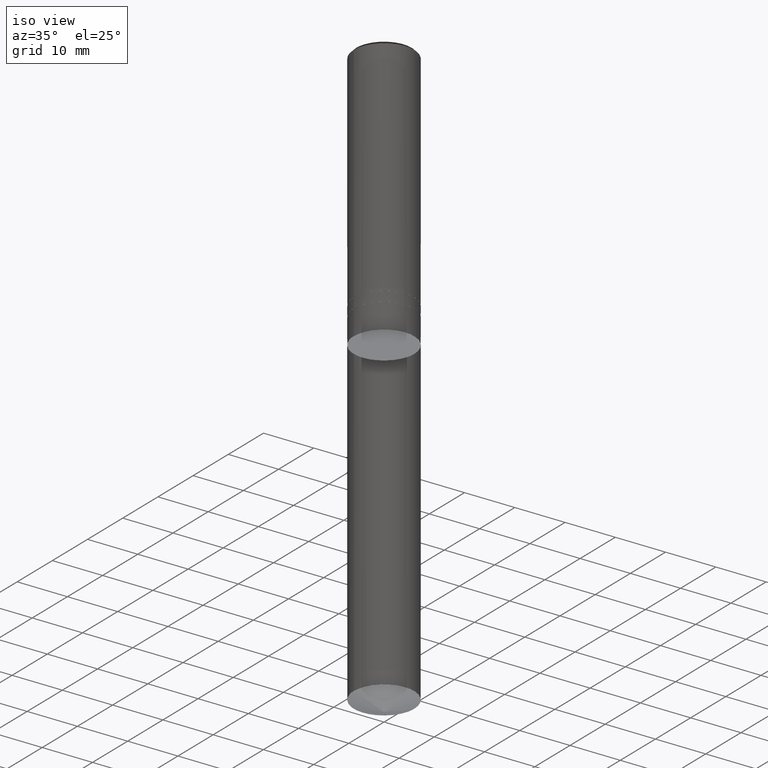
[diagram: clean part render]
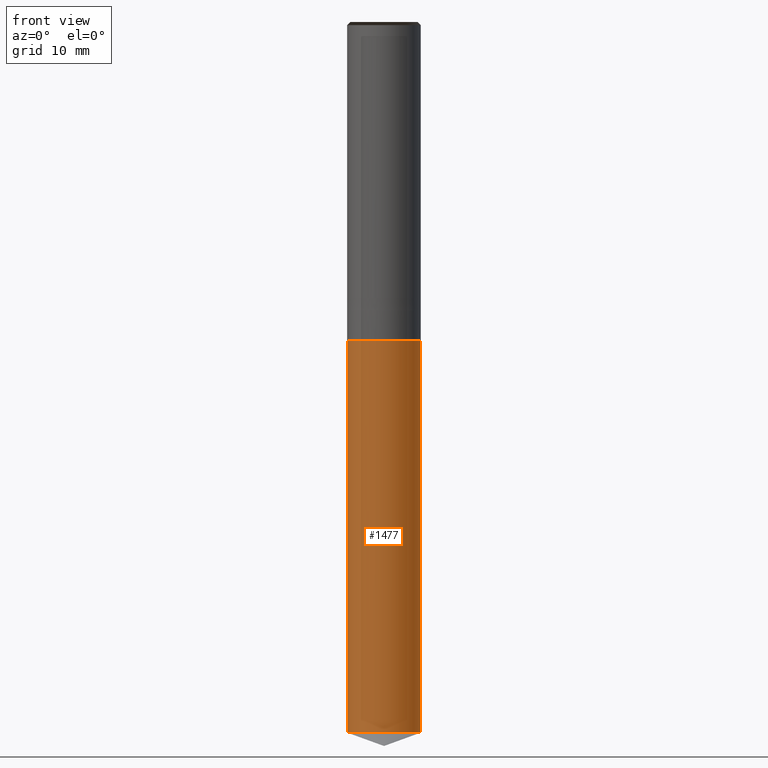
[diagram: tour spotlight — one face highlighted and labeled with its STEP entity id]
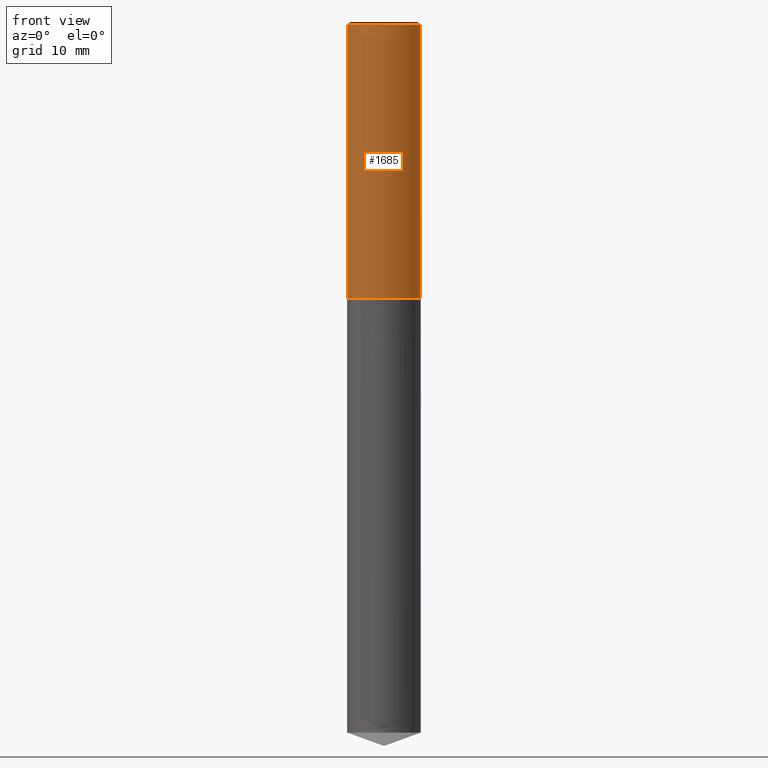
[diagram: tour spotlight — one face highlighted and labeled with its STEP entity id]
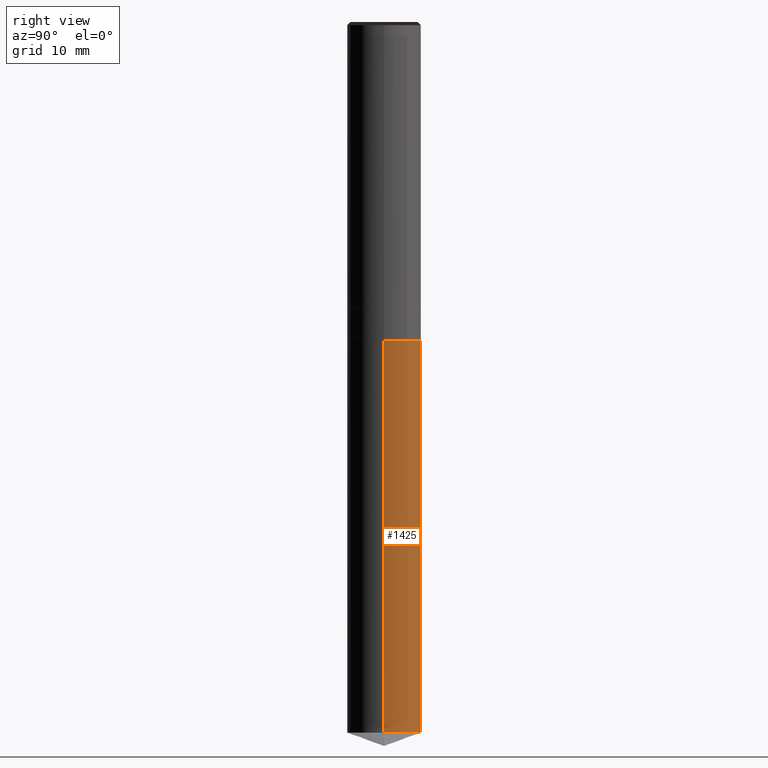
[diagram: tour spotlight — one face highlighted and labeled with its STEP entity id]
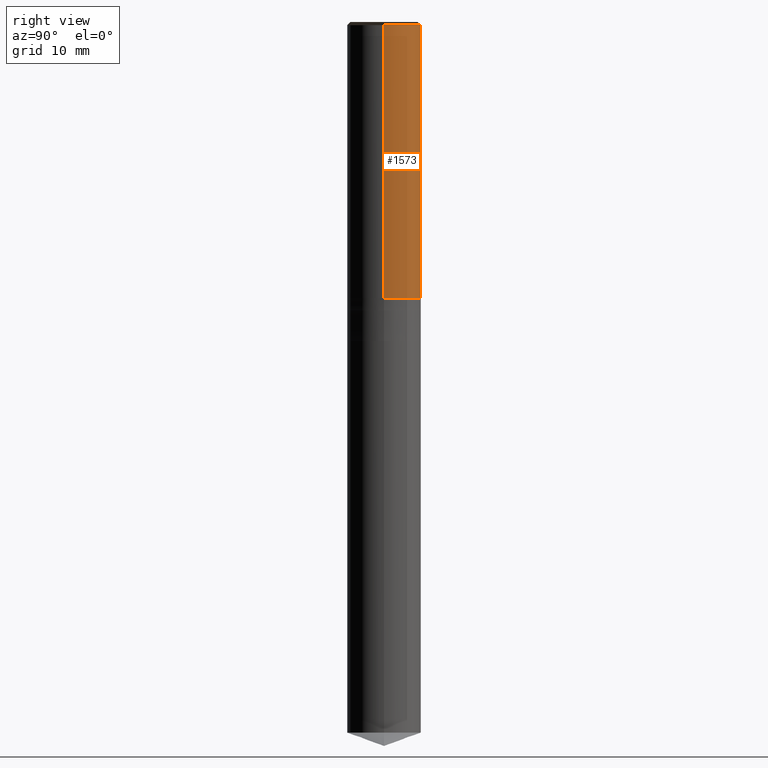
[diagram: tour spotlight — one face highlighted and labeled with its STEP entity id]
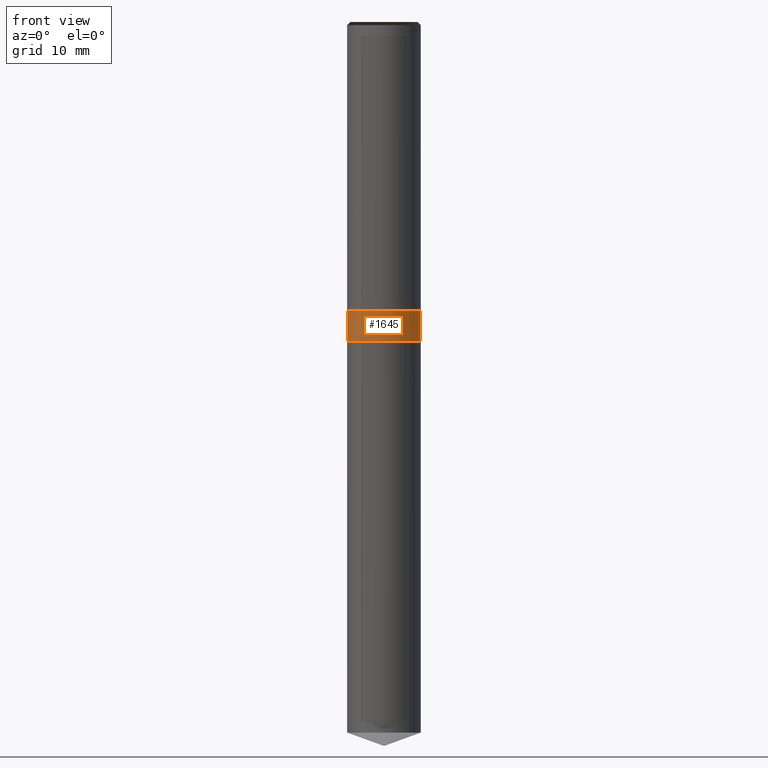
[diagram: tour spotlight — one face highlighted and labeled with its STEP entity id]
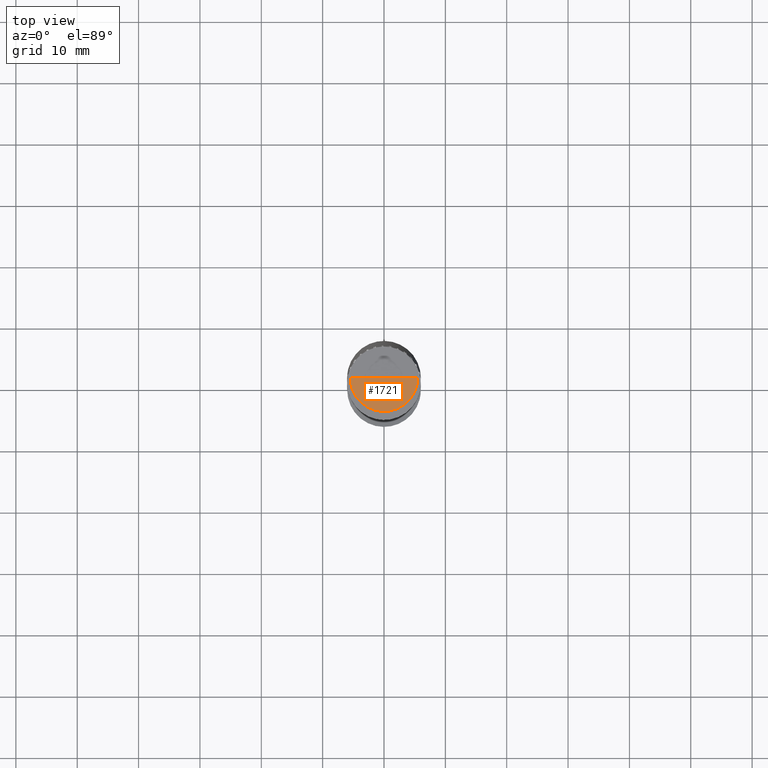
[diagram: tour spotlight — one face highlighted and labeled with its STEP entity id]
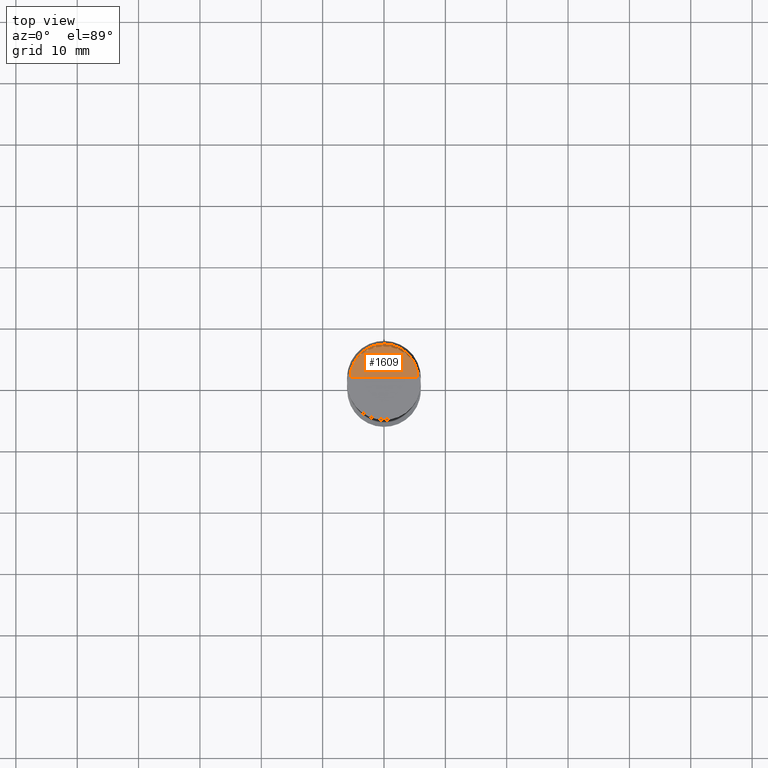
[diagram: tour spotlight — one face highlighted and labeled with its STEP entity id]
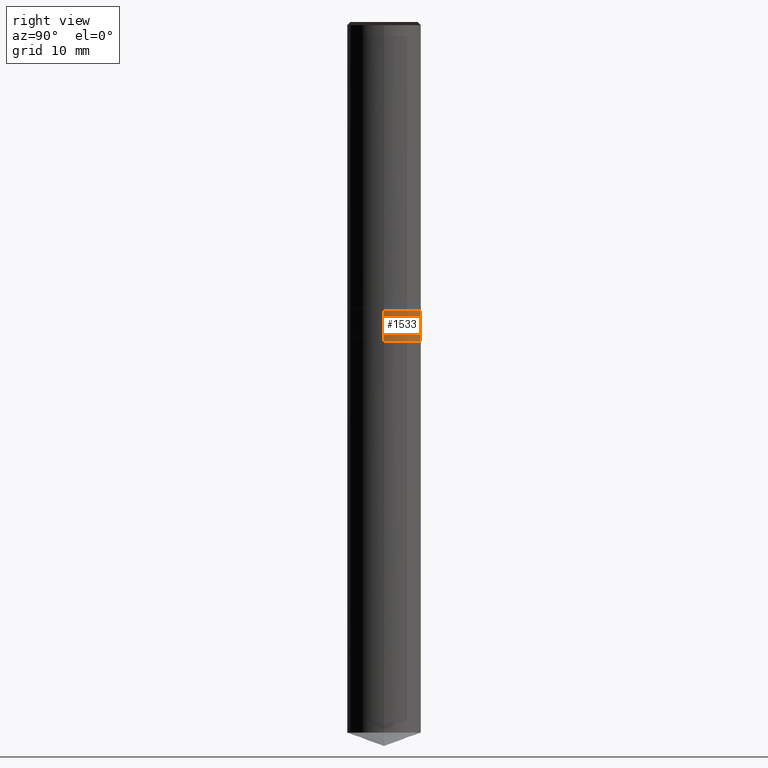
[diagram: tour spotlight — one face highlighted and labeled with its STEP entity id]
A machine part: a face-by-face anatomy tour. The part has 18 B-rep faces; the first image is the clean iso view, then the 8 largest visible faces are spotlighted one at a time (largest first), each with its STEP entity span.

Face 1 — front view, entity #1477. In plain terms, the highlighted face is a freeform B-spline surface patch.
Definition (entity closure, byte-faithful):
#1335=CARTESIAN_POINT('',(6.0,0.0,-70.816178594403));
#1339=CARTESIAN_POINT('',(-6.0,0.0,-70.816178594403));
#1340=CARTESIAN_POINT('',(6.0,0.0,-7.0));
#1344=CARTESIAN_POINT('',(-6.0,0.0,-7.0));
#1346=CARTESIAN_POINT('',(-6.0,-6.0,-70.816178594403));
#1347=CARTESIAN_POINT('',(0.0,-6.0,-70.816178594403));
#1348=CARTESIAN_POINT('',(6.0,-6.0,-70.816178594403));
#1349=CARTESIAN_POINT('',(-6.0,-6.0,-7.0));
#1350=CARTESIAN_POINT('',(0.0,-6.0,-7.0));
#1351=CARTESIAN_POINT('',(6.0,-6.0,-7.0));
#1458=(
BOUNDED_SURFACE()
B_SPLINE_SURFACE(1,2,(
(#1339,#1346,#1347,#1348,#1335),
(#1344,#1349,#1350,#1351,#1340)
), .UNSPECIFIED.,.F.,.F.,.F.)
B_SPLINE_SURFACE_WITH_KNOTS((2,2),(3,2,3),(
0.0,1.0),(
0.0,0.5,1.0), .UNSPECIFIED.)
GEOMETRIC_REPRESENTATION_ITEM()
RATIONAL_B_SPLINE_SURFACE(((1.0,0.707106781187,1.0,0.707106781187,1.0),
(1.0,0.707106781187,1.0,0.707106781187,1.0)
))
REPRESENTATION_ITEM('')
SURFACE()
);
#1459=(
BOUNDED_CURVE()
B_SPLINE_CURVE(2,(#1335,#1348,#1347,#1346,#1339),.UNSPECIFIED.,.F.,.F.)
B_SPLINE_CURVE_WITH_KNOTS((3,2,3),
(0.0,0.5,1.0),.UNSPECIFIED.)
CURVE()
GEOMETRIC_REPRESENTATION_ITEM()
RATIONAL_B_SPLINE_CURVE((1.0,0.707106781187,1.0,0.707106781187,1.0))
REPRESENTATION_ITEM('')
);
#1460=(
BOUNDED_CURVE()
B_SPLINE_CURVE(1,(#1339,#1344),.UNSPECIFIED.,.F.,.F.)
B_SPLINE_CURVE_WITH_KNOTS((2,2),
(0.0,1.0),.UNSPECIFIED.)
CURVE()
GEOMETRIC_REPRESENTATION_ITEM()
RATIONAL_B_SPLINE_CURVE((1.0,1.0))
REPRESENTATION_ITEM('')
);
#1461=(
BOUNDED_CURVE()
B_SPLINE_CURVE(2,(#1344,#1349,#1350,#1351,#1340),.UNSPECIFIED.,.F.,.F.)
B_SPLINE_CURVE_WITH_KNOTS((3,2,3),
(0.0,0.5,1.0),.UNSPECIFIED.)
CURVE()
GEOMETRIC_REPRESENTATION_ITEM()
RATIONAL_B_SPLINE_CURVE((1.0,0.707106781187,1.0,0.707106781187,1.0))
REPRESENTATION_ITEM('')
);
#1462=(
BOUNDED_CURVE()
B_SPLINE_CURVE(1,(#1340,#1335),.UNSPECIFIED.,.F.,.F.)
B_SPLINE_CURVE_WITH_KNOTS((2,2),
(0.0,1.0),.UNSPECIFIED.)
CURVE()
GEOMETRIC_REPRESENTATION_ITEM()
RATIONAL_B_SPLINE_CURVE((1.0,1.0))
REPRESENTATION_ITEM('')
);
#1463=VERTEX_POINT('',#1335);
#1464=VERTEX_POINT('',#1339);
#1465=VERTEX_POINT('',#1340);
#1466=VERTEX_POINT('',#1344);
#1467=EDGE_CURVE('',#1463,#1464,#1459,.T.);
#1468=EDGE_CURVE('',#1464,#1466,#1460,.T.);
#1469=EDGE_CURVE('',#1466,#1465,#1461,.T.);
#1470=EDGE_CURVE('',#1465,#1463,#1462,.T.);
#1471=ORIENTED_EDGE('',*,*,#1467,.T.);
#1472=ORIENTED_EDGE('',*,*,#1468,.T.);
#1473=ORIENTED_EDGE('',*,*,#1469,.T.);
#1474=ORIENTED_EDGE('',*,*,#1470,.T.);
#1475=EDGE_LOOP('',(#1471,#1472,#1473,#1474));
#1476=FACE_OUTER_BOUND('',#1475,.T.);
#1477=ADVANCED_FACE('',(#1476),#1458,.T.);

Face 2 — front view, entity #1685. In plain terms, the highlighted face is a freeform B-spline surface patch.
Definition (entity closure, byte-faithful):
#1357=CARTESIAN_POINT('',(6.0,0.0,0.0));
#1361=CARTESIAN_POINT('',(-6.0,0.0,0.0));
#1362=CARTESIAN_POINT('',(6.0,0.0,44.5));
#1366=CARTESIAN_POINT('',(-6.0,0.0,44.5));
#1376=CARTESIAN_POINT('',(-6.0,-6.0,0.0));
#1377=CARTESIAN_POINT('',(0.0,-6.0,0.0));
#1378=CARTESIAN_POINT('',(6.0,-6.0,0.0));
#1379=CARTESIAN_POINT('',(-6.0,-6.0,44.5));
#1380=CARTESIAN_POINT('',(0.0,-6.0,44.5));
#1381=CARTESIAN_POINT('',(6.0,-6.0,44.5));
#1666=(
BOUNDED_SURFACE()
B_SPLINE_SURFACE(1,2,(
(#1361,#1376,#1377,#1378,#1357),
(#1366,#1379,#1380,#1381,#1362)
), .UNSPECIFIED.,.F.,.F.,.F.)
B_SPLINE_SURFACE_WITH_KNOTS((2,2),(3,2,3),(
0.0,1.0),(
0.0,0.5,1.0), .UNSPECIFIED.)
GEOMETRIC_REPRESENTATION_ITEM()
RATIONAL_B_SPLINE_SURFACE(((1.0,0.707106781187,1.0,0.707106781187,1.0),
(1.0,0.707106781187,1.0,0.707106781187,1.0)
))
REPRESENTATION_ITEM('')
SURFACE()
);
#1667=(
BOUNDED_CURVE()
B_SPLINE_CURVE(2,(#1357,#1378,#1377,#1376,#1361),.UNSPECIFIED.,.F.,.F.)
B_SPLINE_CURVE_WITH_KNOTS((3,2,3),
(0.0,0.5,1.0),.UNSPECIFIED.)
CURVE()
GEOMETRIC_REPRESENTATION_ITEM()
RATIONAL_B_SPLINE_CURVE((1.0,0.707106781187,1.0,0.707106781187,1.0))
REPRESENTATION_ITEM('')
);
#1668=(
BOUNDED_CURVE()
B_SPLINE_CURVE(1,(#1361,#1366),.UNSPECIFIED.,.F.,.F.)
B_SPLINE_CURVE_WITH_KNOTS((2,2),
(0.0,1.0),.UNSPECIFIED.)
CURVE()
GEOMETRIC_REPRESENTATION_ITEM()
RATIONAL_B_SPLINE_CURVE((1.0,1.0))
REPRESENTATION_ITEM('')
);
#1669=(
BOUNDED_CURVE()
B_SPLINE_CURVE(2,(#1366,#1379,#1380,#1381,#1362),.UNSPECIFIED.,.F.,.F.)
B_SPLINE_CURVE_WITH_KNOTS((3,2,3),
(0.0,0.5,1.0),.UNSPECIFIED.)
CURVE()
GEOMETRIC_REPRESENTATION_ITEM()
RATIONAL_B_SPLINE_CURVE((1.0,0.707106781187,1.0,0.707106781187,1.0))
REPRESENTATION_ITEM('')
);
#1670=(
BOUNDED_CURVE()
B_SPLINE_CURVE(1,(#1362,#1357),.UNSPECIFIED.,.F.,.F.)
B_SPLINE_CURVE_WITH_KNOTS((2,2),
(0.0,1.0),.UNSPECIFIED.)
CURVE()
GEOMETRIC_REPRESENTATION_ITEM()
RATIONAL_B_SPLINE_CURVE((1.0,1.0))
REPRESENTATION_ITEM('')
);
#1671=VERTEX_POINT('',#1357);
#1672=VERTEX_POINT('',#1361);
#1673=VERTEX_POINT('',#1362);
#1674=VERTEX_POINT('',#1366);
#1675=EDGE_CURVE('',#1671,#1672,#1667,.T.);
#1676=EDGE_CURVE('',#1672,#1674,#1668,.T.);
#1677=EDGE_CURVE('',#1674,#1673,#1669,.T.);
#1678=EDGE_CURVE('',#1673,#1671,#1670,.T.);
#1679=ORIENTED_EDGE('',*,*,#1675,.T.);
#1680=ORIENTED_EDGE('',*,*,#1676,.T.);
#1681=ORIENTED_EDGE('',*,*,#1677,.T.);
#1682=ORIENTED_EDGE('',*,*,#1678,.T.);
#1683=EDGE_LOOP('',(#1679,#1680,#1681,#1682));
#1684=FACE_OUTER_BOUND('',#1683,.T.);
#1685=ADVANCED_FACE('',(#1684),#1666,.T.);

Face 3 — right view, entity #1425. In plain terms, the highlighted face is a freeform B-spline surface patch.
Definition (entity closure, byte-faithful):
#1335=CARTESIAN_POINT('',(6.0,0.0,-70.816178594403));
#1336=CARTESIAN_POINT('',(6.0,6.0,-70.816178594403));
#1337=CARTESIAN_POINT('',(0.0,6.0,-70.816178594403));
#1338=CARTESIAN_POINT('',(-6.0,6.0,-70.816178594403));
#1339=CARTESIAN_POINT('',(-6.0,0.0,-70.816178594403));
#1340=CARTESIAN_POINT('',(6.0,0.0,-7.0));
#1341=CARTESIAN_POINT('',(6.0,6.0,-7.0));
#1342=CARTESIAN_POINT('',(0.0,6.0,-7.0));
#1343=CARTESIAN_POINT('',(-6.0,6.0,-7.0));
#1344=CARTESIAN_POINT('',(-6.0,0.0,-7.0));
#1406=(
BOUNDED_SURFACE()
B_SPLINE_SURFACE(1,2,(
(#1335,#1336,#1337,#1338,#1339),
(#1340,#1341,#1342,#1343,#1344)
), .UNSPECIFIED.,.F.,.F.,.F.)
B_SPLINE_SURFACE_WITH_KNOTS((2,2),(3,2,3),(
0.0,1.0),(
0.0,0.5,1.0), .UNSPECIFIED.)
GEOMETRIC_REPRESENTATION_ITEM()
RATIONAL_B_SPLINE_SURFACE(((1.0,0.707106781187,1.0,0.707106781187,1.0),
(1.0,0.707106781187,1.0,0.707106781187,1.0)
))
REPRESENTATION_ITEM('')
SURFACE()
);
#1407=(
BOUNDED_CURVE()
B_SPLINE_CURVE(2,(#1339,#1338,#1337,#1336,#1335),.UNSPECIFIED.,.F.,.F.)
B_SPLINE_CURVE_WITH_KNOTS((3,2,3),
(0.0,0.5,1.0),.UNSPECIFIED.)
CURVE()
GEOMETRIC_REPRESENTATION_ITEM()
RATIONAL_B_SPLINE_CURVE((1.0,0.707106781187,1.0,0.707106781187,1.0))
REPRESENTATION_ITEM('')
);
#1408=(
BOUNDED_CURVE()
B_SPLINE_CURVE(1,(#1335,#1340),.UNSPECIFIED.,.F.,.F.)
B_SPLINE_CURVE_WITH_KNOTS((2,2),
(0.0,1.0),.UNSPECIFIED.)
CURVE()
GEOMETRIC_REPRESENTATION_ITEM()
RATIONAL_B_SPLINE_CURVE((1.0,1.0))
REPRESENTATION_ITEM('')
);
#1409=(
BOUNDED_CURVE()
B_SPLINE_CURVE(2,(#1340,#1341,#1342,#1343,#1344),.UNSPECIFIED.,.F.,.F.)
B_SPLINE_CURVE_WITH_KNOTS((3,2,3),
(0.0,0.5,1.0),.UNSPECIFIED.)
CURVE()
GEOMETRIC_REPRESENTATION_ITEM()
RATIONAL_B_SPLINE_CURVE((1.0,0.707106781187,1.0,0.707106781187,1.0))
REPRESENTATION_ITEM('')
);
#1410=(
BOUNDED_CURVE()
B_SPLINE_CURVE(1,(#1344,#1339),.UNSPECIFIED.,.F.,.F.)
B_SPLINE_CURVE_WITH_KNOTS((2,2),
(0.0,1.0),.UNSPECIFIED.)
CURVE()
GEOMETRIC_REPRESENTATION_ITEM()
RATIONAL_B_SPLINE_CURVE((1.0,1.0))
REPRESENTATION_ITEM('')
);
#1411=VERTEX_POINT('',#1335);
#1412=VERTEX_POINT('',#1339);
#1413=VERTEX_POINT('',#1340);
#1414=VERTEX_POINT('',#1344);
#1415=EDGE_CURVE('',#1412,#1411,#1407,.T.);
#1416=EDGE_CURVE('',#1411,#1413,#1408,.T.);
#1417=EDGE_CURVE('',#1413,#1414,#1409,.T.);
#1418=EDGE_CURVE('',#1414,#1412,#1410,.T.);
#1419=ORIENTED_EDGE('',*,*,#1415,.T.);
#1420=ORIENTED_EDGE('',*,*,#1416,.T.);
#1421=ORIENTED_EDGE('',*,*,#1417,.T.);
#1422=ORIENTED_EDGE('',*,*,#1418,.T.);
#1423=EDGE_LOOP('',(#1419,#1420,#1421,#1422));
#1424=FACE_OUTER_BOUND('',#1423,.T.);
#1425=ADVANCED_FACE('',(#1424),#1406,.T.);

Face 4 — right view, entity #1573. In plain terms, the highlighted face is a freeform B-spline surface patch.
Definition (entity closure, byte-faithful):
#1357=CARTESIAN_POINT('',(6.0,0.0,0.0));
#1358=CARTESIAN_POINT('',(6.0,6.0,0.0));
#1359=CARTESIAN_POINT('',(0.0,6.0,0.0));
#1360=CARTESIAN_POINT('',(-6.0,6.0,0.0));
#1361=CARTESIAN_POINT('',(-6.0,0.0,0.0));
#1362=CARTESIAN_POINT('',(6.0,0.0,44.5));
#1363=CARTESIAN_POINT('',(6.0,6.0,44.5));
#1364=CARTESIAN_POINT('',(0.0,6.0,44.5));
#1365=CARTESIAN_POINT('',(-6.0,6.0,44.5));
#1366=CARTESIAN_POINT('',(-6.0,0.0,44.5));
#1554=(
BOUNDED_SURFACE()
B_SPLINE_SURFACE(1,2,(
(#1357,#1358,#1359,#1360,#1361),
(#1362,#1363,#1364,#1365,#1366)
), .UNSPECIFIED.,.F.,.F.,.F.)
B_SPLINE_SURFACE_WITH_KNOTS((2,2),(3,2,3),(
0.0,1.0),(
0.0,0.5,1.0), .UNSPECIFIED.)
GEOMETRIC_REPRESENTATION_ITEM()
RATIONAL_B_SPLINE_SURFACE(((1.0,0.707106781187,1.0,0.707106781187,1.0),
(1.0,0.707106781187,1.0,0.707106781187,1.0)
))
REPRESENTATION_ITEM('')
SURFACE()
);
#1555=(
BOUNDED_CURVE()
B_SPLINE_CURVE(2,(#1361,#1360,#1359,#1358,#1357),.UNSPECIFIED.,.F.,.F.)
B_SPLINE_CURVE_WITH_KNOTS((3,2,3),
(0.0,0.5,1.0),.UNSPECIFIED.)
CURVE()
GEOMETRIC_REPRESENTATION_ITEM()
RATIONAL_B_SPLINE_CURVE((1.0,0.707106781187,1.0,0.707106781187,1.0))
REPRESENTATION_ITEM('')
);
#1556=(
BOUNDED_CURVE()
B_SPLINE_CURVE(1,(#1357,#1362),.UNSPECIFIED.,.F.,.F.)
B_SPLINE_CURVE_WITH_KNOTS((2,2),
(0.0,1.0),.UNSPECIFIED.)
CURVE()
GEOMETRIC_REPRESENTATION_ITEM()
RATIONAL_B_SPLINE_CURVE((1.0,1.0))
REPRESENTATION_ITEM('')
);
#1557=(
BOUNDED_CURVE()
B_SPLINE_CURVE(2,(#1362,#1363,#1364,#1365,#1366),.UNSPECIFIED.,.F.,.F.)
B_SPLINE_CURVE_WITH_KNOTS((3,2,3),
(0.0,0.5,1.0),.UNSPECIFIED.)
CURVE()
GEOMETRIC_REPRESENTATION_ITEM()
RATIONAL_B_SPLINE_CURVE((1.0,0.707106781187,1.0,0.707106781187,1.0))
REPRESENTATION_ITEM('')
);
#1558=(
BOUNDED_CURVE()
B_SPLINE_CURVE(1,(#1366,#1361),.UNSPECIFIED.,.F.,.F.)
B_SPLINE_CURVE_WITH_KNOTS((2,2),
(0.0,1.0),.UNSPECIFIED.)
CURVE()
GEOMETRIC_REPRESENTATION_ITEM()
RATIONAL_B_SPLINE_CURVE((1.0,1.0))
REPRESENTATION_ITEM('')
);
#1559=VERTEX_POINT('',#1357);
#1560=VERTEX_POINT('',#1361);
#1561=VERTEX_POINT('',#1362);
#1562=VERTEX_POINT('',#1366);
#1563=EDGE_CURVE('',#1560,#1559,#1555,.T.);
#1564=EDGE_CURVE('',#1559,#1561,#1556,.T.);
#1565=EDGE_CURVE('',#1561,#1562,#1557,.T.);
#1566=EDGE_CURVE('',#1562,#1560,#1558,.T.);
#1567=ORIENTED_EDGE('',*,*,#1563,.T.);
#1568=ORIENTED_EDGE('',*,*,#1564,.T.);
#1569=ORIENTED_EDGE('',*,*,#1565,.T.);
#1570=ORIENTED_EDGE('',*,*,#1566,.T.);
#1571=EDGE_LOOP('',(#1567,#1568,#1569,#1570));
#1572=FACE_OUTER_BOUND('',#1571,.T.);
#1573=ADVANCED_FACE('',(#1572),#1554,.T.);

Face 5 — front view, entity #1645. In plain terms, the highlighted face is a freeform B-spline surface patch.
Definition (entity closure, byte-faithful):
#1340=CARTESIAN_POINT('',(6.0,0.0,-7.0));
#1344=CARTESIAN_POINT('',(-6.0,0.0,-7.0));
#1349=CARTESIAN_POINT('',(-6.0,-6.0,-7.0));
#1350=CARTESIAN_POINT('',(0.0,-6.0,-7.0));
#1351=CARTESIAN_POINT('',(6.0,-6.0,-7.0));
#1352=CARTESIAN_POINT('',(6.0,0.0,-2.0));
#1356=CARTESIAN_POINT('',(-6.0,0.0,-2.0));
#1373=CARTESIAN_POINT('',(-6.0,-6.0,-2.0));
#1374=CARTESIAN_POINT('',(0.0,-6.0,-2.0));
#1375=CARTESIAN_POINT('',(6.0,-6.0,-2.0));
#1626=(
BOUNDED_SURFACE()
B_SPLINE_SURFACE(1,2,(
(#1344,#1349,#1350,#1351,#1340),
(#1356,#1373,#1374,#1375,#1352)
), .UNSPECIFIED.,.F.,.F.,.F.)
B_SPLINE_SURFACE_WITH_KNOTS((2,2),(3,2,3),(
0.0,1.0),(
0.0,0.5,1.0), .UNSPECIFIED.)
GEOMETRIC_REPRESENTATION_ITEM()
RATIONAL_B_SPLINE_SURFACE(((1.0,0.707106781187,1.0,0.707106781187,1.0),
(1.0,0.707106781187,1.0,0.707106781187,1.0)
))
REPRESENTATION_ITEM('')
SURFACE()
);
#1627=(
BOUNDED_CURVE()
B_SPLINE_CURVE(2,(#1340,#1351,#1350,#1349,#1344),.UNSPECIFIED.,.F.,.F.)
B_SPLINE_CURVE_WITH_KNOTS((3,2,3),
(0.0,0.5,1.0),.UNSPECIFIED.)
CURVE()
GEOMETRIC_REPRESENTATION_ITEM()
RATIONAL_B_SPLINE_CURVE((1.0,0.707106781187,1.0,0.707106781187,1.0))
REPRESENTATION_ITEM('')
);
#1628=(
BOUNDED_CURVE()
B_SPLINE_CURVE(1,(#1344,#1356),.UNSPECIFIED.,.F.,.F.)
B_SPLINE_CURVE_WITH_KNOTS((2,2),
(0.0,1.0),.UNSPECIFIED.)
CURVE()
GEOMETRIC_REPRESENTATION_ITEM()
RATIONAL_B_SPLINE_CURVE((1.0,1.0))
REPRESENTATION_ITEM('')
);
#1629=(
BOUNDED_CURVE()
B_SPLINE_CURVE(2,(#1356,#1373,#1374,#1375,#1352),.UNSPECIFIED.,.F.,.F.)
B_SPLINE_CURVE_WITH_KNOTS((3,2,3),
(0.0,0.5,1.0),.UNSPECIFIED.)
CURVE()
GEOMETRIC_REPRESENTATION_ITEM()
RATIONAL_B_SPLINE_CURVE((1.0,0.707106781187,1.0,0.707106781187,1.0))
REPRESENTATION_ITEM('')
);
#1630=(
BOUNDED_CURVE()
B_SPLINE_CURVE(1,(#1352,#1340),.UNSPECIFIED.,.F.,.F.)
B_SPLINE_CURVE_WITH_KNOTS((2,2),
(0.0,1.0),.UNSPECIFIED.)
CURVE()
GEOMETRIC_REPRESENTATION_ITEM()
RATIONAL_B_SPLINE_CURVE((1.0,1.0))
REPRESENTATION_ITEM('')
);
#1631=VERTEX_POINT('',#1340);
#1632=VERTEX_POINT('',#1344);
#1633=VERTEX_POINT('',#1352);
#1634=VERTEX_POINT('',#1356);
#1635=EDGE_CURVE('',#1631,#1632,#1627,.T.);
#1636=EDGE_CURVE('',#1632,#1634,#1628,.T.);
#1637=EDGE_CURVE('',#1634,#1633,#1629,.T.);
#1638=EDGE_CURVE('',#1633,#1631,#1630,.T.);
#1639=ORIENTED_EDGE('',*,*,#1635,.T.);
#1640=ORIENTED_EDGE('',*,*,#1636,.T.);
#1641=ORIENTED_EDGE('',*,*,#1637,.T.);
#1642=ORIENTED_EDGE('',*,*,#1638,.T.);
#1643=EDGE_LOOP('',(#1639,#1640,#1641,#1642));
#1644=FACE_OUTER_BOUND('',#1643,.T.);
#1645=ADVANCED_FACE('',(#1644),#1626,.T.);

Face 6 — top view, entity #1721. In plain terms, the highlighted face is a freeform B-spline surface patch.
Definition (entity closure, byte-faithful):
#1367=CARTESIAN_POINT('',(5.5,0.0,45.0));
#1371=CARTESIAN_POINT('',(-5.5,0.0,45.0));
#1372=CARTESIAN_POINT('',(0.0,0.0,45.0));
#1382=CARTESIAN_POINT('',(-5.5,-5.5,45.0));
#1383=CARTESIAN_POINT('',(0.0,-5.5,45.0));
#1384=CARTESIAN_POINT('',(5.5,-5.5,45.0));
#1706=(
BOUNDED_SURFACE()
B_SPLINE_SURFACE(1,2,(
(#1371,#1382,#1383,#1384,#1367),
(#1372,#1372,#1372,#1372,#1372)
), .UNSPECIFIED.,.F.,.F.,.F.)
B_SPLINE_SURFACE_WITH_KNOTS((2,2),(3,2,3),(
0.0,1.0),(
0.0,0.5,1.0), .UNSPECIFIED.)
GEOMETRIC_REPRESENTATION_ITEM()
RATIONAL_B_SPLINE_SURFACE(((1.0,0.707106781187,1.0,0.707106781187,1.0),
(1.0,0.707106781187,1.0,0.707106781187,1.0)
))
REPRESENTATION_ITEM('')
SURFACE()
);
#1707=(
BOUNDED_CURVE()
B_SPLINE_CURVE(2,(#1367,#1384,#1383,#1382,#1371),.UNSPECIFIED.,.F.,.F.)
B_SPLINE_CURVE_WITH_KNOTS((3,2,3),
(0.0,0.5,1.0),.UNSPECIFIED.)
CURVE()
GEOMETRIC_REPRESENTATION_ITEM()
RATIONAL_B_SPLINE_CURVE((1.0,0.707106781187,1.0,0.707106781187,1.0))
REPRESENTATION_ITEM('')
);
#1708=(
BOUNDED_CURVE()
B_SPLINE_CURVE(1,(#1371,#1372),.UNSPECIFIED.,.F.,.F.)
B_SPLINE_CURVE_WITH_KNOTS((2,2),
(0.0,1.0),.UNSPECIFIED.)
CURVE()
GEOMETRIC_REPRESENTATION_ITEM()
RATIONAL_B_SPLINE_CURVE((1.0,1.0))
REPRESENTATION_ITEM('')
);
#1709=(
BOUNDED_CURVE()
B_SPLINE_CURVE(1,(#1372,#1367),.UNSPECIFIED.,.F.,.F.)
B_SPLINE_CURVE_WITH_KNOTS((2,2),
(0.0,1.0),.UNSPECIFIED.)
CURVE()
GEOMETRIC_REPRESENTATION_ITEM()
RATIONAL_B_SPLINE_CURVE((1.0,1.0))
REPRESENTATION_ITEM('')
);
#1710=VERTEX_POINT('',#1367);
#1711=VERTEX_POINT('',#1371);
#1712=VERTEX_POINT('',#1372);
#1713=EDGE_CURVE('',#1710,#1711,#1707,.T.);
#1714=EDGE_CURVE('',#1711,#1712,#1708,.T.);
#1715=EDGE_CURVE('',#1712,#1710,#1709,.T.);
#1716=ORIENTED_EDGE('',*,*,#1713,.T.);
#1717=ORIENTED_EDGE('',*,*,#1714,.T.);
#1718=ORIENTED_EDGE('',*,*,#1715,.T.);
#1719=EDGE_LOOP('',(#1716,#1717,#1718));
#1720=FACE_OUTER_BOUND('',#1719,.T.);
#1721=ADVANCED_FACE('',(#1720),#1706,.T.);

Face 7 — top view, entity #1609. In plain terms, the highlighted face is a freeform B-spline surface patch.
Definition (entity closure, byte-faithful):
#1367=CARTESIAN_POINT('',(5.5,0.0,45.0));
#1368=CARTESIAN_POINT('',(5.5,5.5,45.0));
#1369=CARTESIAN_POINT('',(0.0,5.5,45.0));
#1370=CARTESIAN_POINT('',(-5.5,5.5,45.0));
#1371=CARTESIAN_POINT('',(-5.5,0.0,45.0));
#1372=CARTESIAN_POINT('',(0.0,0.0,45.0));
#1594=(
BOUNDED_SURFACE()
B_SPLINE_SURFACE(1,2,(
(#1367,#1368,#1369,#1370,#1371),
(#1372,#1372,#1372,#1372,#1372)
), .UNSPECIFIED.,.F.,.F.,.F.)
B_SPLINE_SURFACE_WITH_KNOTS((2,2),(3,2,3),(
0.0,1.0),(
0.0,0.5,1.0), .UNSPECIFIED.)
GEOMETRIC_REPRESENTATION_ITEM()
RATIONAL_B_SPLINE_SURFACE(((1.0,0.707106781187,1.0,0.707106781187,1.0),
(1.0,0.707106781187,1.0,0.707106781187,1.0)
))
REPRESENTATION_ITEM('')
SURFACE()
);
#1595=(
BOUNDED_CURVE()
B_SPLINE_CURVE(2,(#1371,#1370,#1369,#1368,#1367),.UNSPECIFIED.,.F.,.F.)
B_SPLINE_CURVE_WITH_KNOTS((3,2,3),
(0.0,0.5,1.0),.UNSPECIFIED.)
CURVE()
GEOMETRIC_REPRESENTATION_ITEM()
RATIONAL_B_SPLINE_CURVE((1.0,0.707106781187,1.0,0.707106781187,1.0))
REPRESENTATION_ITEM('')
);
#1596=(
BOUNDED_CURVE()
B_SPLINE_CURVE(1,(#1367,#1372),.UNSPECIFIED.,.F.,.F.)
B_SPLINE_CURVE_WITH_KNOTS((2,2),
(0.0,1.0),.UNSPECIFIED.)
CURVE()
GEOMETRIC_REPRESENTATION_ITEM()
RATIONAL_B_SPLINE_CURVE((1.0,1.0))
REPRESENTATION_ITEM('')
);
#1597=(
BOUNDED_CURVE()
B_SPLINE_CURVE(1,(#1372,#1371),.UNSPECIFIED.,.F.,.F.)
B_SPLINE_CURVE_WITH_KNOTS((2,2),
(0.0,1.0),.UNSPECIFIED.)
CURVE()
GEOMETRIC_REPRESENTATION_ITEM()
RATIONAL_B_SPLINE_CURVE((1.0,1.0))
REPRESENTATION_ITEM('')
);
#1598=VERTEX_POINT('',#1367);
#1599=VERTEX_POINT('',#1371);
#1600=VERTEX_POINT('',#1372);
#1601=EDGE_CURVE('',#1599,#1598,#1595,.T.);
#1602=EDGE_CURVE('',#1598,#1600,#1596,.T.);
#1603=EDGE_CURVE('',#1600,#1599,#1597,.T.);
#1604=ORIENTED_EDGE('',*,*,#1601,.T.);
#1605=ORIENTED_EDGE('',*,*,#1602,.T.);
#1606=ORIENTED_EDGE('',*,*,#1603,.T.);
#1607=EDGE_LOOP('',(#1604,#1605,#1606));
#1608=FACE_OUTER_BOUND('',#1607,.T.);
#1609=ADVANCED_FACE('',(#1608),#1594,.T.);

Face 8 — right view, entity #1533. In plain terms, the highlighted face is a freeform B-spline surface patch.
Definition (entity closure, byte-faithful):
#1340=CARTESIAN_POINT('',(6.0,0.0,-7.0));
#1341=CARTESIAN_POINT('',(6.0,6.0,-7.0));
#1342=CARTESIAN_POINT('',(0.0,6.0,-7.0));
#1343=CARTESIAN_POINT('',(-6.0,6.0,-7.0));
#1344=CARTESIAN_POINT('',(-6.0,0.0,-7.0));
#1352=CARTESIAN_POINT('',(6.0,0.0,-2.0));
#1353=CARTESIAN_POINT('',(6.0,6.0,-2.0));
#1354=CARTESIAN_POINT('',(0.0,6.0,-2.0));
#1355=CARTESIAN_POINT('',(-6.0,6.0,-2.0));
#1356=CARTESIAN_POINT('',(-6.0,0.0,-2.0));
#1514=(
BOUNDED_SURFACE()
B_SPLINE_SURFACE(1,2,(
(#1340,#1341,#1342,#1343,#1344),
(#1352,#1353,#1354,#1355,#1356)
), .UNSPECIFIED.,.F.,.F.,.F.)
B_SPLINE_SURFACE_WITH_KNOTS((2,2),(3,2,3),(
0.0,1.0),(
0.0,0.5,1.0), .UNSPECIFIED.)
GEOMETRIC_REPRESENTATION_ITEM()
RATIONAL_B_SPLINE_SURFACE(((1.0,0.707106781187,1.0,0.707106781187,1.0),
(1.0,0.707106781187,1.0,0.707106781187,1.0)
))
REPRESENTATION_ITEM('')
SURFACE()
);
#1515=(
BOUNDED_CURVE()
B_SPLINE_CURVE(2,(#1344,#1343,#1342,#1341,#1340),.UNSPECIFIED.,.F.,.F.)
B_SPLINE_CURVE_WITH_KNOTS((3,2,3),
(0.0,0.5,1.0),.UNSPECIFIED.)
CURVE()
GEOMETRIC_REPRESENTATION_ITEM()
RATIONAL_B_SPLINE_CURVE((1.0,0.707106781187,1.0,0.707106781187,1.0))
REPRESENTATION_ITEM('')
);
#1516=(
BOUNDED_CURVE()
B_SPLINE_CURVE(1,(#1340,#1352),.UNSPECIFIED.,.F.,.F.)
B_SPLINE_CURVE_WITH_KNOTS((2,2),
(0.0,1.0),.UNSPECIFIED.)
CURVE()
GEOMETRIC_REPRESENTATION_ITEM()
RATIONAL_B_SPLINE_CURVE((1.0,1.0))
REPRESENTATION_ITEM('')
);
#1517=(
BOUNDED_CURVE()
B_SPLINE_CURVE(2,(#1352,#1353,#1354,#1355,#1356),.UNSPECIFIED.,.F.,.F.)
B_SPLINE_CURVE_WITH_KNOTS((3,2,3),
(0.0,0.5,1.0),.UNSPECIFIED.)
CURVE()
GEOMETRIC_REPRESENTATION_ITEM()
RATIONAL_B_SPLINE_CURVE((1.0,0.707106781187,1.0,0.707106781187,1.0))
REPRESENTATION_ITEM('')
);
#1518=(
BOUNDED_CURVE()
B_SPLINE_CURVE(1,(#1356,#1344),.UNSPECIFIED.,.F.,.F.)
B_SPLINE_CURVE_WITH_KNOTS((2,2),
(0.0,1.0),.UNSPECIFIED.)
CURVE()
GEOMETRIC_REPRESENTATION_ITEM()
RATIONAL_B_SPLINE_CURVE((1.0,1.0))
REPRESENTATION_ITEM('')
);
#1519=VERTEX_POINT('',#1340);
#1520=VERTEX_POINT('',#1344);
#1521=VERTEX_POINT('',#1352);
#1522=VERTEX_POINT('',#1356);
#1523=EDGE_CURVE('',#1520,#1519,#1515,.T.);
#1524=EDGE_CURVE('',#1519,#1521,#1516,.T.);
#1525=EDGE_CURVE('',#1521,#1522,#1517,.T.);
#1526=EDGE_CURVE('',#1522,#1520,#1518,.T.);
#1527=ORIENTED_EDGE('',*,*,#1523,.T.);
#1528=ORIENTED_EDGE('',*,*,#1524,.T.);
#1529=ORIENTED_EDGE('',*,*,#1525,.T.);
#1530=ORIENTED_EDGE('',*,*,#1526,.T.);
#1531=EDGE_LOOP('',(#1527,#1528,#1529,#1530));
#1532=FACE_OUTER_BOUND('',#1531,.T.);
#1533=ADVANCED_FACE('',(#1532),#1514,.T.);